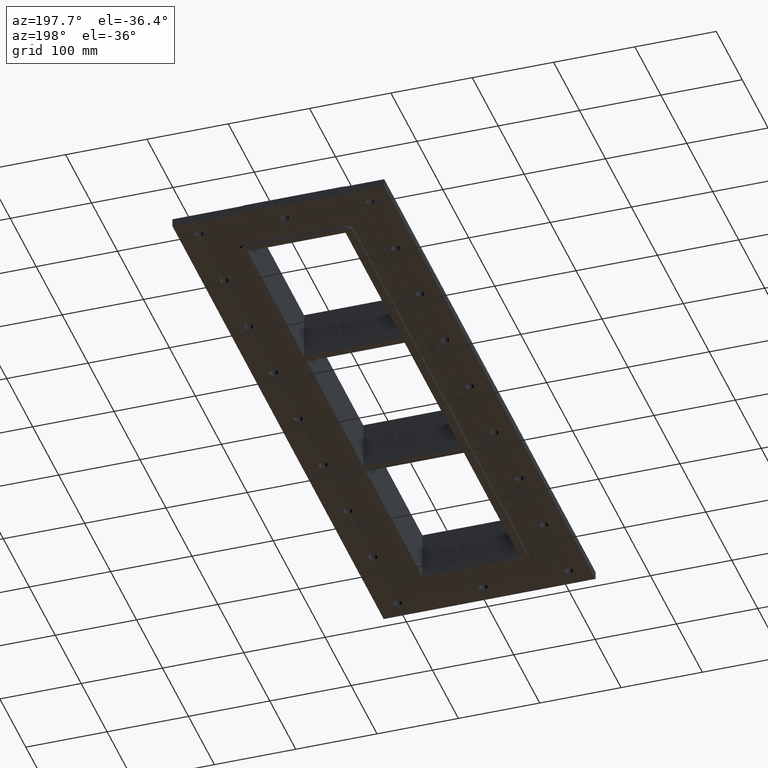
[diagram: clean part render]
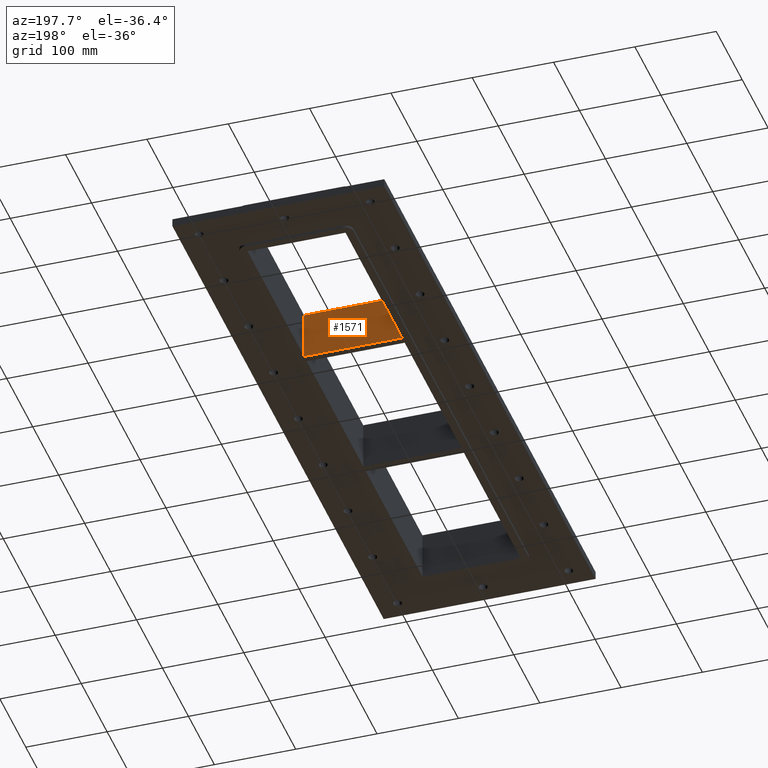
[diagram: same view with one face highlighted and labeled with its STEP entity id]
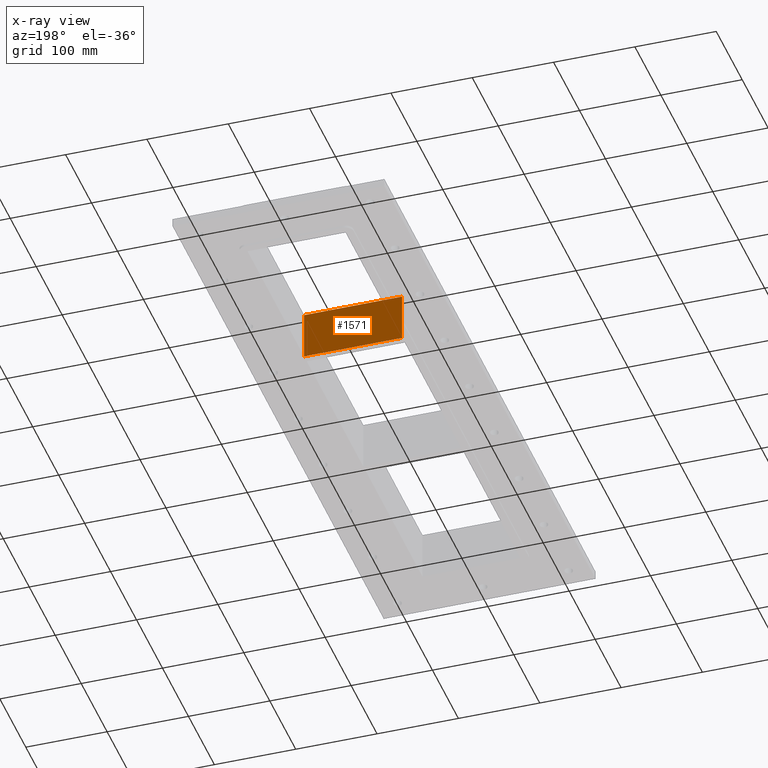
[diagram: x-ray of the same camera — body ghosted, the highlighted face saturated]
A machine part, auxiliary view. The second image highlights one B-rep face of the part: STEP entity #1571.
The next image is the same camera in x-ray: the body ghosted, the highlighted face saturated — about 0% of this face is hidden behind the body in this view.
In plain terms, the highlighted planar face has unit normal (0, -1, 0).
Its self-contained STEP definition (entity closure, byte-faithful):
#1308=CARTESIAN_POINT('',(-60.250000000000057,119.00000000000013,-30.0));
#1309=VERTEX_POINT('',#1308);
#1316=CARTESIAN_POINT('',(60.249999999999915,119.00000000000006,-30.0));
#1317=VERTEX_POINT('',#1316);
#1318=CARTESIAN_POINT('',(-60.250000000000057,119.00000000000013,-30.0));
#1319=DIRECTION('',(1.0,0.0,0.0));
#1320=VECTOR('',#1319,120.49999999999997);
#1321=LINE('',#1318,#1320);
#1322=EDGE_CURVE('',#1309,#1317,#1321,.T.);
#1531=CARTESIAN_POINT('',(-60.250000000000057,119.00000000000013,30.0));
#1532=VERTEX_POINT('',#1531);
#1539=CARTESIAN_POINT('',(-60.250000000000057,119.00000000000013,30.0));
#1540=DIRECTION('',(0.0,0.0,-1.0));
#1541=VECTOR('',#1540,60.0);
#1542=LINE('',#1539,#1541);
#1543=EDGE_CURVE('',#1532,#1309,#1542,.T.);
#1548=CARTESIAN_POINT('',(60.249999999999915,119.00000000000006,30.0));
#1549=DIRECTION('',(0.0,-1.0,0.0));
#1550=DIRECTION('',(-1.0,0.0,0.0));
#1551=AXIS2_PLACEMENT_3D('',#1548,#1549,#1550);
#1552=PLANE('',#1551);
#1553=ORIENTED_EDGE('',*,*,#1322,.F.);
#1554=ORIENTED_EDGE('',*,*,#1543,.F.);
#1555=CARTESIAN_POINT('',(60.249999999999915,119.00000000000006,30.0));
#1556=VERTEX_POINT('',#1555);
#1557=CARTESIAN_POINT('',(60.249999999999915,119.00000000000006,30.0));
#1558=DIRECTION('',(-1.0,0.0,0.0));
#1559=VECTOR('',#1558,120.49999999999997);
#1560=LINE('',#1557,#1559);
#1561=EDGE_CURVE('',#1556,#1532,#1560,.T.);
#1562=ORIENTED_EDGE('',*,*,#1561,.F.);
#1563=CARTESIAN_POINT('',(60.249999999999915,119.00000000000006,30.0));
#1564=DIRECTION('',(0.0,0.0,-1.0));
#1565=VECTOR('',#1564,60.0);
#1566=LINE('',#1563,#1565);
#1567=EDGE_CURVE('',#1556,#1317,#1566,.T.);
#1568=ORIENTED_EDGE('',*,*,#1567,.T.);
#1569=EDGE_LOOP('',(#1553,#1554,#1562,#1568));
#1570=FACE_OUTER_BOUND('',#1569,.T.);
#1571=ADVANCED_FACE('',(#1570),#1552,.F.);